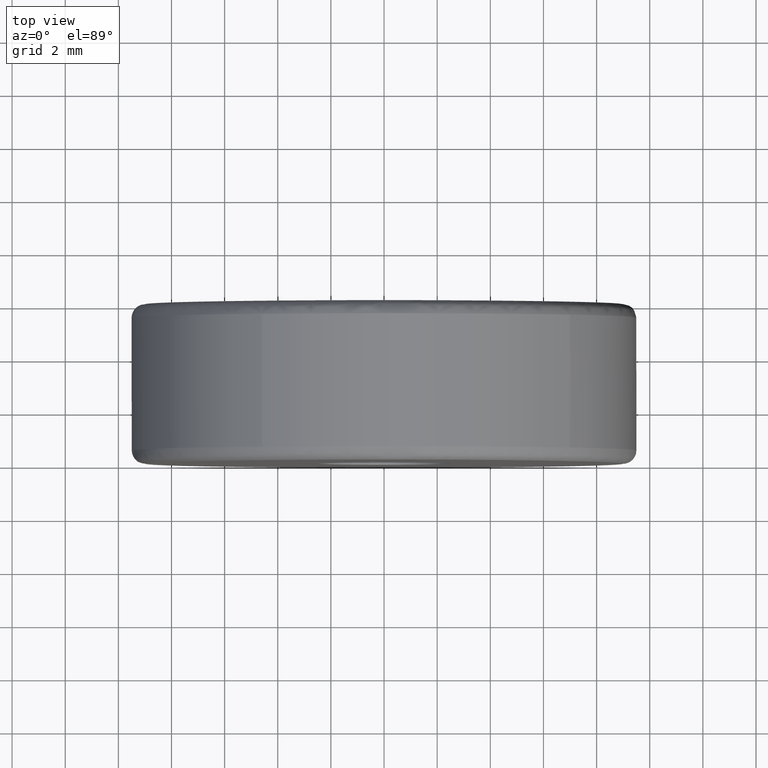
[diagram: clean part render]
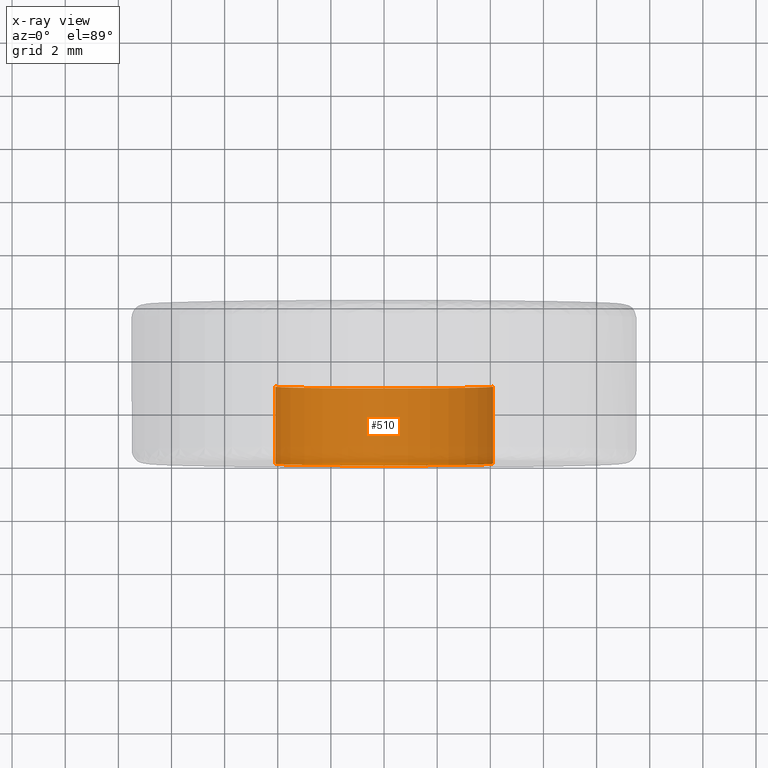
[diagram: x-ray — body ghosted, one internal face saturated and labeled with its STEP entity id]
A machine part, top view, then the same camera in x-ray: the body is ghosted and one INTERNAL B-rep face — a face not visible from any outside direction — is saturated and labeled: STEP entity #510.
In plain terms, the highlighted face is a freeform B-spline surface patch.
Its self-contained STEP definition (entity closure, byte-faithful):
#408=CARTESIAN_POINT('',(-4.081269153354669,2.972500000000002,0.485120704439277));
#409=CARTESIAN_POINT('',(-4.095153099493770,2.972500000000001,0.368316534702088));
#410=CARTESIAN_POINT('',(-4.102334021513872,2.972500000000001,0.250909497488262));
#411=CARTESIAN_POINT('',(-4.353243519002135,2.972500000000001,-3.851424524025610));
#412=CARTESIAN_POINT('',(-0.250909497488262,2.972500000000001,-4.102334021513872));
#413=CARTESIAN_POINT('',(3.851424524025610,2.972500000000001,-4.353243519002135));
#414=CARTESIAN_POINT('',(4.102334021513872,2.972500000000001,-0.250909497488262));
#415=CARTESIAN_POINT('',(-4.081269153354669,-0.074312500000000,0.485120704439277));
#416=CARTESIAN_POINT('',(-4.095153099493770,-0.074312500000000,0.368316534702088));
#417=CARTESIAN_POINT('',(-4.102334021513872,-0.074312500000000,0.250909497488262));
#418=CARTESIAN_POINT('',(-4.353243519002135,-0.074312500000000,-3.851424524025610));
#419=CARTESIAN_POINT('',(-0.250909497488262,-0.074312500000000,-4.102334021513872));
#420=CARTESIAN_POINT('',(3.851424524025610,-0.074312500000000,-4.353243519002135));
#421=CARTESIAN_POINT('',(4.102334021513872,-0.074312500000000,-0.250909497488262));
#429=(BOUNDED_SURFACE()B_SPLINE_SURFACE(2,1,((#408,#415),(#409,#416),(#410,#417),(#411,#418),(#412,#419),(#413,#420),(#414,#421)),.UNSPECIFIED.,.F.,.F.,.U.)B_SPLINE_SURFACE_WITH_KNOTS((3,2,2,3),(2,2),(0.0,0.272386838616548,7.082057804030230,13.891728769443910),(0.0,3.046812500000002),.UNSPECIFIED.)GEOMETRIC_REPRESENTATION_ITEM()RATIONAL_B_SPLINE_SURFACE(((0.977505800795127,0.977505800795127),(0.988284271247462,0.988284271247462),(1.0,1.0),(0.707106781186548,0.707106781186548),(1.0,1.0),(0.707106781186548,0.707106781186548),(1.0,1.0)))REPRESENTATION_ITEM('')SURFACE());
#430=CARTESIAN_POINT('',(-4.081269326331584,2.899999999999992,0.485119249198370));
#431=VERTEX_POINT('',#430);
#432=CARTESIAN_POINT('',(0.0,2.900000000000000,-4.110000000000000));
#433=VERTEX_POINT('',#432);
#434=CARTESIAN_POINT('',(-4.081269326331585,2.899999999999992,0.485119249198370));
#435=CARTESIAN_POINT('',(-4.110000000000001,2.900000000000000,0.243410396456625));
#436=CARTESIAN_POINT('',(-4.110000000000000,2.900000000000000,0.0));
#437=CARTESIAN_POINT('',(-4.110000000000000,2.900000000000001,-4.110000000000000));
#438=CARTESIAN_POINT('',(0.0,2.900000000000000,-4.110000000000000));
#446=(BOUNDED_CURVE()B_SPLINE_CURVE(2,(#434,#435,#436,#437,#438),.UNSPECIFIED.,.F.,.U.)B_SPLINE_CURVE_WITH_KNOTS((3,2,3),(0.229562533776421,0.250000000000000,0.500000000000000),.UNSPECIFIED.)CURVE()GEOMETRIC_REPRESENTATION_ITEM()RATIONAL_B_SPLINE_CURVE((0.956026872301508,0.976056018933539,1.0,0.707106781186547,1.0))REPRESENTATION_ITEM(''));
#447=EDGE_CURVE('',#431,#433,#446,.T.);
#448=ORIENTED_EDGE('',*,*,#447,.F.);
#449=CARTESIAN_POINT('',(-4.081269324250505,2.058585E-016,0.485119266706369));
#450=VERTEX_POINT('',#449);
#451=CARTESIAN_POINT('',(-4.081269326331584,2.899999999999992,0.485119249198370));
#452=CARTESIAN_POINT('',(-4.081269324250505,2.058585E-016,0.485119266706369));
#453=QUASI_UNIFORM_CURVE('',1,(#451,#452),.UNSPECIFIED.,.F.,.U.);
#454=EDGE_CURVE('',#431,#450,#453,.T.);
#455=ORIENTED_EDGE('',*,*,#454,.T.);
#456=CARTESIAN_POINT('',(0.0,0.0,-4.110000000000000));
#457=VERTEX_POINT('',#456);
#458=CARTESIAN_POINT('',(-4.081269324250505,2.058585E-016,0.485119266706369));
#459=CARTESIAN_POINT('',(-4.110000000000000,0.0,0.243410405303170));
#460=CARTESIAN_POINT('',(-4.110000000000000,0.0,0.0));
#461=CARTESIAN_POINT('',(-4.110000000000000,0.0,-4.110000000000000));
#462=CARTESIAN_POINT('',(0.0,0.0,-4.110000000000000));
#470=(BOUNDED_CURVE()B_SPLINE_CURVE(2,(#458,#459,#460,#461,#462),.UNSPECIFIED.,.F.,.U.)B_SPLINE_CURVE_WITH_KNOTS((3,2,3),(0.229562533051423,0.250000000000000,0.500000000000000),.UNSPECIFIED.)CURVE()GEOMETRIC_REPRESENTATION_ITEM()RATIONAL_B_SPLINE_CURVE((0.956026870880483,0.976056018084151,1.0,0.707106781186547,1.0))REPRESENTATION_ITEM(''));
#471=EDGE_CURVE('',#450,#457,#470,.T.);
#472=ORIENTED_EDGE('',*,*,#471,.T.);
#473=CARTESIAN_POINT('',(4.102334321413232,4.163336E-017,-0.250904594080903));
#474=VERTEX_POINT('',#473);
#475=CARTESIAN_POINT('',(0.0,0.0,-4.110000000000000));
#476=CARTESIAN_POINT('',(3.866306564905083,0.0,-4.109999999999999));
#477=CARTESIAN_POINT('',(4.102334321413232,4.163336E-017,-0.250904594080903));
#485=(BOUNDED_CURVE()B_SPLINE_CURVE(2,(#475,#476,#477),.UNSPECIFIED.,.F.,.U.)B_SPLINE_CURVE_WITH_KNOTS((3,3),(0.500000000000000,0.739333168482446),.UNSPECIFIED.)CURVE()GEOMETRIC_REPRESENTATION_ITEM()RATIONAL_B_SPLINE_CURVE((1.0,0.719603751657416,0.976072483686204))REPRESENTATION_ITEM(''));
#486=EDGE_CURVE('',#457,#474,#485,.T.);
#487=ORIENTED_EDGE('',*,*,#486,.T.);
#488=CARTESIAN_POINT('',(4.102334325074388,2.900000000000060,-0.250904534219158));
#489=VERTEX_POINT('',#488);
#490=CARTESIAN_POINT('',(4.102334325074388,2.900000000000060,-0.250904534219158));
#491=CARTESIAN_POINT('',(4.102334321413232,4.163336E-017,-0.250904594080903));
#492=QUASI_UNIFORM_CURVE('',1,(#490,#491),.UNSPECIFIED.,.F.,.U.);
#493=EDGE_CURVE('',#489,#474,#492,.T.);
#494=ORIENTED_EDGE('',*,*,#493,.F.);
#495=CARTESIAN_POINT('',(0.0,2.900000000000000,-4.110000000000000));
#496=CARTESIAN_POINT('',(3.866306621428103,2.900000000000000,-4.110000000000000));
#497=CARTESIAN_POINT('',(4.102334325074388,2.900000000000060,-0.250904534219158));
#505=(BOUNDED_CURVE()B_SPLINE_CURVE(2,(#495,#496,#497),.UNSPECIFIED.,.F.,.U.)B_SPLINE_CURVE_WITH_KNOTS((3,3),(0.500000000000000,0.739333171000270),.UNSPECIFIED.)CURVE()GEOMETRIC_REPRESENTATION_ITEM()RATIONAL_B_SPLINE_CURVE((1.0,0.719603748707602,0.976072489082390))REPRESENTATION_ITEM(''));
#506=EDGE_CURVE('',#433,#489,#505,.T.);
#507=ORIENTED_EDGE('',*,*,#506,.F.);
#508=EDGE_LOOP('',(#448,#455,#472,#487,#494,#507));
#509=FACE_OUTER_BOUND('',#508,.T.);
#510=ADVANCED_FACE('',(#509),#429,.F.);